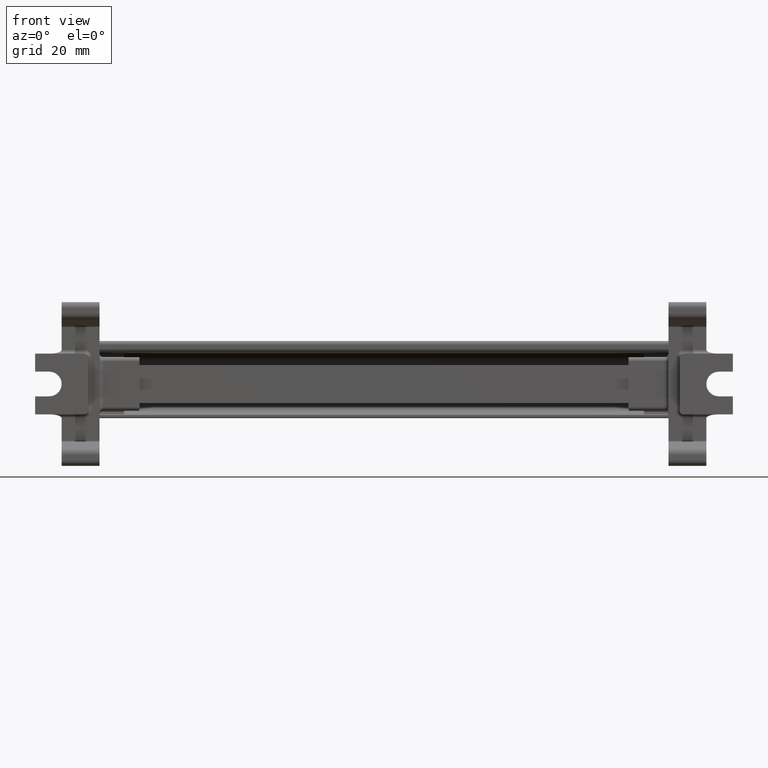
[diagram: clean part render]
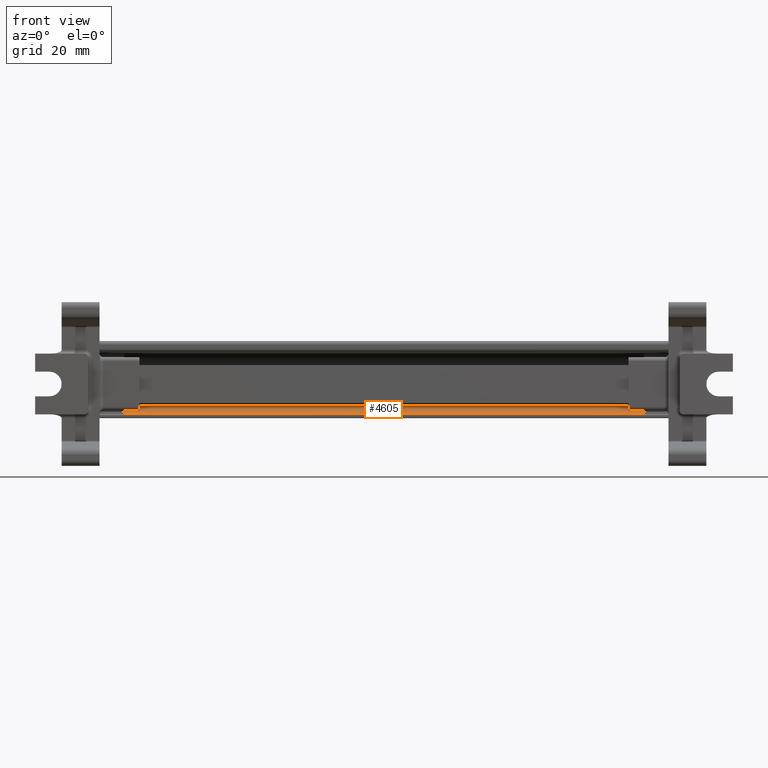
[diagram: same view with one face highlighted and labeled with its STEP entity id]
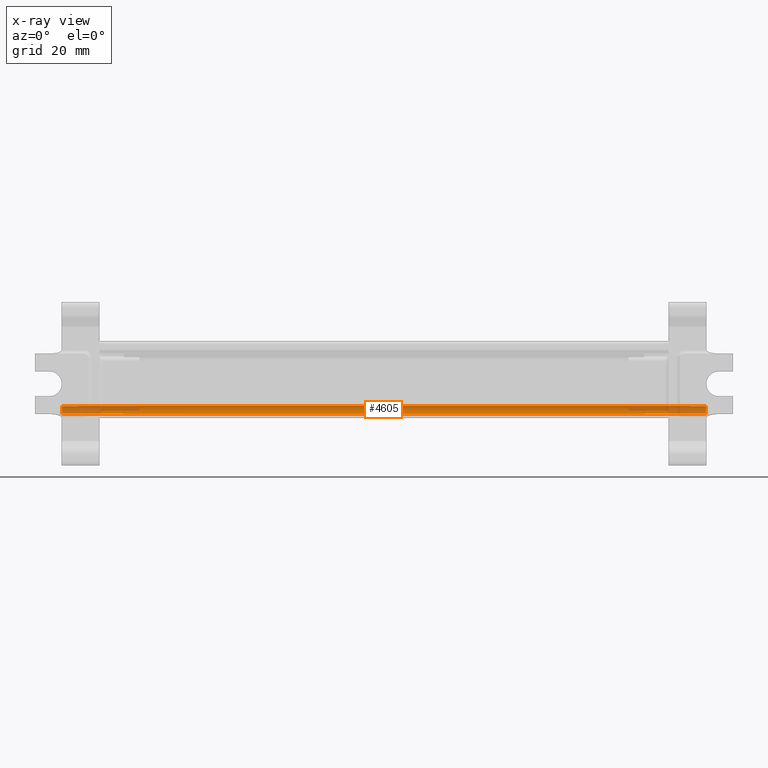
[diagram: x-ray of the same camera — body ghosted, the highlighted face saturated]
A machine part, front view. The second image highlights one B-rep face of the part: STEP entity #4605.
The next image is the same camera in x-ray: the body ghosted, the highlighted face saturated — about 19% of this face is hidden behind the body in this view.
In plain terms, the highlighted cylindrical surface (edge-blend (fillet) strip) has radius 2 mm, axis along (-1, 0, 0).
Its self-contained STEP definition (entity closure, byte-faithful):
#1043 = EDGE_LOOP ( 'NONE', ( #26280, #26238, #26220, #26304, #26241, #26265, #26267, #26284 ) ) ;
#3860 =( BOUNDED_CURVE ( )  B_SPLINE_CURVE ( 3, ( #21338, #21340, #21365, #21321 ),
 .UNSPECIFIED., .F., .T. ) 
 B_SPLINE_CURVE_WITH_KNOTS ( ( 4, 4 ),
 ( 3.141592713341233400, 3.170923501266820200 ),
 .UNSPECIFIED. ) 
 CURVE ( )  GEOMETRIC_REPRESENTATION_ITEM ( )  RATIONAL_B_SPLINE_CURVE ( ( 1.000000000000000000, 0.9999283100248719200, 0.9999283100248719200, 1.000000000000000000 ) ) 
 REPRESENTATION_ITEM ( '' )  );
#3864 =( BOUNDED_CURVE ( )  B_SPLINE_CURVE ( 3, ( #18466, #18464, #18467, #18481 ),
 .UNSPECIFIED., .F., .T. ) 
 B_SPLINE_CURVE_WITH_KNOTS ( ( 4, 4 ),
 ( 6.253854459502465000, 6.283185247428121100 ),
 .UNSPECIFIED. ) 
 CURVE ( )  GEOMETRIC_REPRESENTATION_ITEM ( )  RATIONAL_B_SPLINE_CURVE ( ( 1.000000000000000000, 0.9999283100248714800, 0.9999283100248714800, 1.000000000000000000 ) ) 
 REPRESENTATION_ITEM ( '' )  );
#4605 = ADVANCED_FACE ( 'NONE', ( #27230 ), #27265, .F. ) ;
#9601 = VERTEX_POINT ( 'NONE', #16856 ) ;
#9654 = VERTEX_POINT ( 'NONE', #16857 ) ;
#9656 = VERTEX_POINT ( 'NONE', #16878 ) ;
#9666 = VERTEX_POINT ( 'NONE', #16867 ) ;
#9680 = VERTEX_POINT ( 'NONE', #16920 ) ;
#9690 = VERTEX_POINT ( 'NONE', #16887 ) ;
#9707 = VERTEX_POINT ( 'NONE', #16982 ) ;
#9708 = VERTEX_POINT ( 'NONE', #16952 ) ;
#11984 = EDGE_CURVE ( 'NONE', #9666, #9680, #3864, .T. ) ;
#11999 = EDGE_CURVE ( 'NONE', #9708, #9680, #18516, .T. ) ;
#12044 = EDGE_CURVE ( 'NONE', #9601, #9654, #34119, .T. ) ;
#12100 = EDGE_CURVE ( 'NONE', #9666, #9707, #18982, .T. ) ;
#12122 = EDGE_CURVE ( 'NONE', #9690, #9707, #34385, .T. ) ;
#12183 = EDGE_CURVE ( 'NONE', #9708, #9656, #3860, .T. ) ;
#12198 = EDGE_CURVE ( 'NONE', #9601, #9690, #21406, .T. ) ;
#12202 = EDGE_CURVE ( 'NONE', #9654, #9656, #21459, .T. ) ;
#16856 = CARTESIAN_POINT ( 'NONE',  ( 44.94230230417436200, 71.24772865624426300, 30.27456032707539900 ) ) ;
#16857 = CARTESIAN_POINT ( 'NONE',  ( 44.94230230417438300, 73.21196624745324800, 32.21559921539561300 ) ) ;
#16867 = CARTESIAN_POINT ( 'NONE',  ( -120.6517580486649200, 73.21196624745455500, 32.21559921539599000 ) ) ;
#16878 = CARTESIAN_POINT ( 'NONE',  ( 40.74636265701689600, 73.21196624745329000, 32.21559921539549300 ) ) ;
#16887 = CARTESIAN_POINT ( 'NONE',  ( -124.8476976958256000, 71.24772865624561300, 30.27456032707605600 ) ) ;
#16920 = CARTESIAN_POINT ( 'NONE',  ( -120.6521591830565300, 73.21282648293329500, 32.27425228012668900 ) ) ;
#16952 = CARTESIAN_POINT ( 'NONE',  ( 40.74676379140873900, 73.21282648293261300, 32.27425228012604900 ) ) ;
#16982 = CARTESIAN_POINT ( 'NONE',  ( -124.8476976958255600, 73.21196624745459800, 32.21559921539609000 ) ) ;
#17988 = DIRECTION ( 'NONE',  ( 1.000000000000000000, -7.931712594431441900E-015, -3.864784542006208600E-015 ) ) ;
#18014 = CARTESIAN_POINT ( 'NONE',  ( -124.8476976958255900, 71.21282990598575700, 32.27425239962937600 ) ) ;
#18015 = DIRECTION ( 'NONE',  ( 6.938905780026253800E-015, 1.000000000000000000, 0.0000000000000000000 ) ) ;
#18464 = CARTESIAN_POINT ( 'NONE',  ( -120.6520254614613300, 73.21253971604709000, 32.23514533073504400 ) ) ;
#18466 = CARTESIAN_POINT ( 'NONE',  ( -120.6517580486649200, 73.21196624745455500, 32.21559921539599000 ) ) ;
#18467 = CARTESIAN_POINT ( 'NONE',  ( -120.6521591825116400, 73.21282648176490700, 32.25469775402468300 ) ) ;
#18481 = CARTESIAN_POINT ( 'NONE',  ( -120.6521591830565300, 73.21282648293329500, 32.27425228012668900 ) ) ;
#18516 = LINE ( 'NONE', #18517, #34561 ) ;
#18517 = CARTESIAN_POINT ( 'NONE',  ( -12.35269769582558700, 73.21282648293244200, 32.27425228012626900 ) ) ;
#18522 = DIRECTION ( 'NONE',  ( -1.000000000000000000, 7.897574933814930700E-015, 3.853197141484226100E-015 ) ) ;
#18680 = DIRECTION ( 'NONE',  ( 1.000000000000000000, -7.931712594431441900E-015, -3.864784542006208600E-015 ) ) ;
#18698 = CARTESIAN_POINT ( 'NONE',  ( 44.94230230417436900, 71.21282990598440700, 32.27425239962872200 ) ) ;
#18713 = DIRECTION ( 'NONE',  ( 6.938905780026253800E-015, 1.000000000000000000, 0.0000000000000000000 ) ) ;
#18972 = CARTESIAN_POINT ( 'NONE',  ( -12.35269769582558500, 73.21196624745377300, 32.21559921539799400 ) ) ;
#18975 = DIRECTION ( 'NONE',  ( -1.000000000000000000, 7.897574933814930700E-015, 3.853197141484226100E-015 ) ) ;
#18982 = LINE ( 'NONE', #18972, #34373 ) ;
#21321 = CARTESIAN_POINT ( 'NONE',  ( 40.74636265701689600, 73.21196624745329000, 32.21559921539549300 ) ) ;
#21338 = CARTESIAN_POINT ( 'NONE',  ( 40.74676379140873900, 73.21282648293261300, 32.27425228012604900 ) ) ;
#21340 = CARTESIAN_POINT ( 'NONE',  ( 40.74676379086363200, 73.21282648176362800, 32.25469775402408600 ) ) ;
#21365 = CARTESIAN_POINT ( 'NONE',  ( 40.74663006981332100, 73.21253971604581100, 32.23514533073449700 ) ) ;
#21406 = LINE ( 'NONE', #21483, #24148 ) ;
#21409 = DIRECTION ( 'NONE',  ( -1.000000000000000000, 7.897574933814930700E-015, 3.853197141484226100E-015 ) ) ;
#21459 = LINE ( 'NONE', #21465, #24174 ) ;
#21465 = CARTESIAN_POINT ( 'NONE',  ( -12.35269769582560600, 73.21196624745371700, 32.21559921539614600 ) ) ;
#21480 = DIRECTION ( 'NONE',  ( -1.000000000000000000, 7.897574933814930700E-015, 3.853197141484226100E-015 ) ) ;
#21483 = CARTESIAN_POINT ( 'NONE',  ( -12.35269769582561700, 71.24772865624471800, 30.27456032707562300 ) ) ;
#24148 = VECTOR ( 'NONE', #21409, 1000.000000000000000 ) ;
#24174 = VECTOR ( 'NONE', #21480, 1000.000000000000000 ) ;
#26220 = ORIENTED_EDGE ( 'NONE', *, *, #12122, .F. ) ;
#26238 = ORIENTED_EDGE ( 'NONE', *, *, #12100, .T. ) ;
#26241 = ORIENTED_EDGE ( 'NONE', *, *, #12044, .T. ) ;
#26265 = ORIENTED_EDGE ( 'NONE', *, *, #12202, .T. ) ;
#26267 = ORIENTED_EDGE ( 'NONE', *, *, #12183, .F. ) ;
#26280 = ORIENTED_EDGE ( 'NONE', *, *, #11984, .F. ) ;
#26284 = ORIENTED_EDGE ( 'NONE', *, *, #11999, .T. ) ;
#26304 = ORIENTED_EDGE ( 'NONE', *, *, #12198, .F. ) ;
#27230 = FACE_OUTER_BOUND ( 'NONE', #1043, .T. ) ;
#27256 = DIRECTION ( 'NONE',  ( 3.469452890013130100E-015, -6.107034436086292000E-007, 0.9999999999998134800 ) ) ;
#27261 = DIRECTION ( 'NONE',  ( -1.000000000000000000, 7.897574933814930700E-015, 3.853197141484226100E-015 ) ) ;
#27265 = CYLINDRICAL_SURFACE ( 'NONE', #27934, 1.999996576947602900 ) ;
#27266 = CARTESIAN_POINT ( 'NONE',  ( -12.35269769582561700, 71.21282990598486200, 32.27425239962894200 ) ) ;
#27934 = AXIS2_PLACEMENT_3D ( 'NONE', #27266, #27261, #27256 ) ;
#34119 = CIRCLE ( 'NONE', #34124, 1.999996576947604700 ) ;
#34124 = AXIS2_PLACEMENT_3D ( 'NONE', #18698, #18680, #18713 ) ;
#34356 = AXIS2_PLACEMENT_3D ( 'NONE', #18014, #17988, #18015 ) ;
#34373 = VECTOR ( 'NONE', #18975, 1000.000000000000000 ) ;
#34385 = CIRCLE ( 'NONE', #34356, 1.999996576947604700 ) ;
#34561 = VECTOR ( 'NONE', #18522, 1000.000000000000000 ) ;